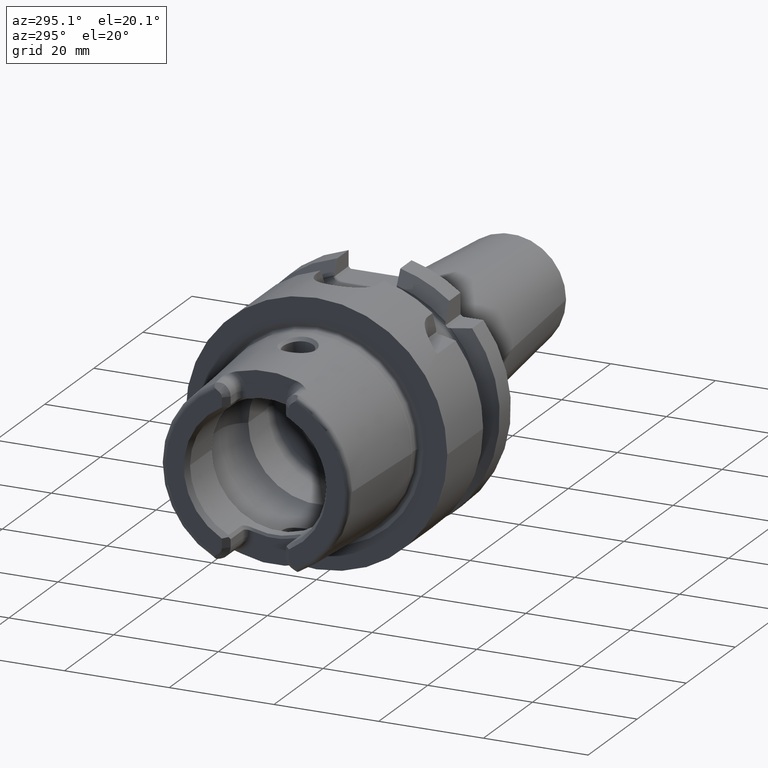
[diagram: clean part render]
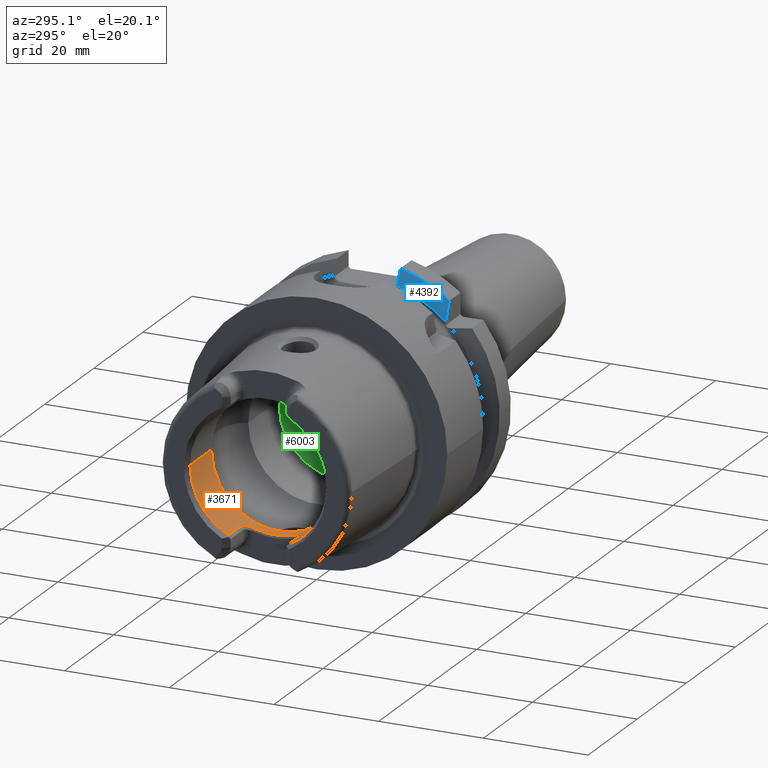
[diagram: same view with three faces highlighted in distinct colors, each labeled with its STEP entity id]
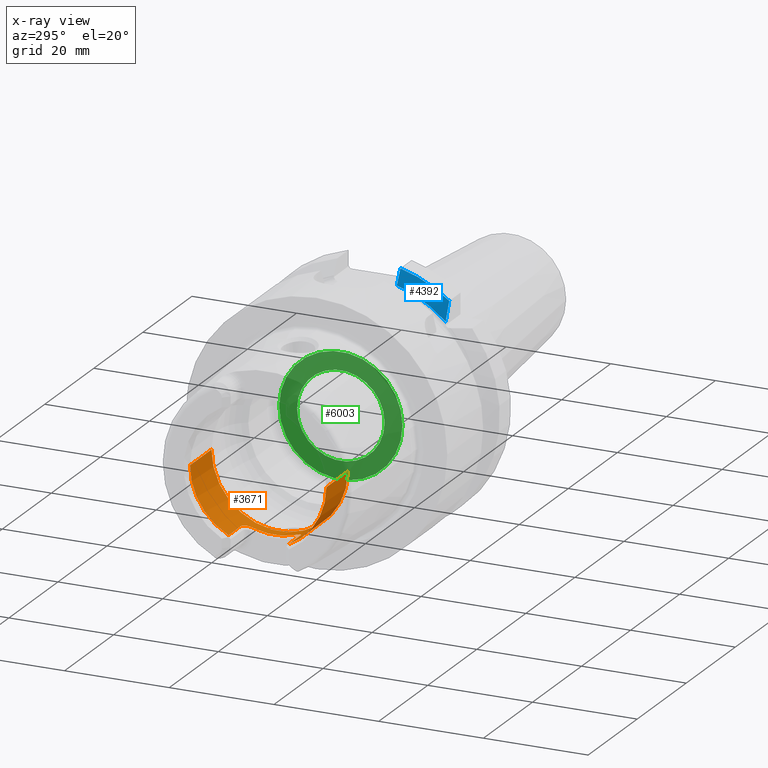
[diagram: x-ray of the same camera — body ghosted, the three highlighted faces saturated]
A machine part, auxiliary view with three faces highlighted in distinct colors.
The next image is the same camera in x-ray (body ghosted, the three faces saturated) — at least one of them is partly hidden behind the body in this view.
Their STEP definitions:

[orange] entity #3671 — the highlighted cylindrical surface (partial cylindrical patch) has radius 13.021 mm, axis along (1, 0, 0).
#164=CARTESIAN_POINT('',(-2.375E1,0.E0,0.E0));
#165=DIRECTION('',(-1.E0,0.E0,0.E0));
#166=DIRECTION('',(0.E0,1.E0,0.E0));
#167=AXIS2_PLACEMENT_3D('',#164,#165,#166);
#186=CARTESIAN_POINT('',(-2.375E1,0.E0,0.E0));
#187=DIRECTION('',(-1.E0,0.E0,0.E0));
#188=DIRECTION('',(0.E0,-4.349817201113E-1,-9.004392834439E-1));
#189=AXIS2_PLACEMENT_3D('',#186,#187,#188);
#456=DIRECTION('',(1.E0,0.E0,0.E0));
#457=VECTOR('',#456,5.E0);
#458=CARTESIAN_POINT('',(-2.375E1,-5.663896977569E0,-1.172461990972E1));
#459=LINE('',#458,#457);
#460=CARTESIAN_POINT('',(-1.706132486541E1,-3.87E0,-1.243259992922E1));
#461=CARTESIAN_POINT('',(-1.705894931913E1,-3.948091654476E0,
-1.240829168279E1));
#462=CARTESIAN_POINT('',(-1.706441309206E1,-4.102870364684E0,
-1.235850704973E1));
#463=CARTESIAN_POINT('',(-1.710340937126E1,-4.332575060023E0,
-1.227984117765E1));
#464=CARTESIAN_POINT('',(-1.717180096637E1,-4.554379111812E0,
-1.219925586913E1));
#465=CARTESIAN_POINT('',(-1.726759596237E1,-4.764243794044E0,
-1.211875654714E1));
#466=CARTESIAN_POINT('',(-1.738971110869E1,-4.958984425980E0,
-1.204028059499E1));
#467=CARTESIAN_POINT('',(-1.753429552224E1,-5.134450973302E0,
-1.196639092679E1));
#468=CARTESIAN_POINT('',(-1.769814688581E1,-5.287549372908E0,
-1.189942311510E1));
#469=CARTESIAN_POINT('',(-1.787965354263E1,-5.418141852278E0,
-1.184043301133E1));
#470=CARTESIAN_POINT('',(-1.807911024602E1,-5.524630321581E0,
-1.179103046127E1));
#471=CARTESIAN_POINT('',(-1.829372880595E1,-5.603842524286E0,
-1.175351168471E1));
#472=CARTESIAN_POINT('',(-1.851977527645E1,-5.652930353736E0,
-1.172992742962E1));
#473=CARTESIAN_POINT('',(-1.867259884466E1,-5.663896977569E0,
-1.172461990972E1));
#474=CARTESIAN_POINT('',(-1.875E1,-5.663896977569E0,-1.172461990972E1));
#476=CARTESIAN_POINT('',(-1.706132486541E1,3.87E0,-1.243259992922E1));
#477=CARTESIAN_POINT('',(-1.706132486541E1,3.369759291873E0,-1.258831406395E1));
#478=CARTESIAN_POINT('',(-1.706132486543E1,2.350461057243E0,-1.283928497214E1));
#479=CARTESIAN_POINT('',(-1.706132486542E1,7.873060254891E-1,
-1.302889312722E1));
#480=CARTESIAN_POINT('',(-1.706132486542E1,-7.873060254894E-1,
-1.302889312722E1));
#481=CARTESIAN_POINT('',(-1.706132486543E1,-2.350461057241E0,
-1.283928497214E1));
#482=CARTESIAN_POINT('',(-1.706132486541E1,-3.369759291876E0,
-1.258831406395E1));
#483=CARTESIAN_POINT('',(-1.706132486541E1,-3.87E0,-1.243259992922E1));
#485=CARTESIAN_POINT('',(-1.875E1,5.663896977569E0,-1.172461990972E1));
#486=CARTESIAN_POINT('',(-1.867253385205E1,5.663896977569E0,-1.172461990972E1));
#487=CARTESIAN_POINT('',(-1.851960965794E1,5.652887713534E0,-1.172994778184E1));
#488=CARTESIAN_POINT('',(-1.829404762981E1,5.603940373139E0,-1.175346518954E1));
#489=CARTESIAN_POINT('',(-1.807890617342E1,5.524545608259E0,-1.179107033680E1));
#490=CARTESIAN_POINT('',(-1.788013782468E1,5.418376947730E0,-1.184032277023E1));
#491=CARTESIAN_POINT('',(-1.769964741780E1,5.288706180038E0,-1.189890407446E1));
#492=CARTESIAN_POINT('',(-1.753651365017E1,5.136729908552E0,-1.196540626531E1));
#493=CARTESIAN_POINT('',(-1.739224734480E1,4.962438291892E0,-1.203885194320E1));
#494=CARTESIAN_POINT('',(-1.726976173003E1,4.768262064128E0,-1.211717470493E1));
#495=CARTESIAN_POINT('',(-1.717314189077E1,4.558070073865E0,-1.219788504272E1));
#496=CARTESIAN_POINT('',(-1.710382652775E1,4.334631930509E0,-1.227912648142E1));
#497=CARTESIAN_POINT('',(-1.706445401734E1,4.103717960171E0,-1.235823255338E1));
#498=CARTESIAN_POINT('',(-1.705894190168E1,3.948335489392E0,-1.240821578224E1));
#499=CARTESIAN_POINT('',(-1.706132486541E1,3.87E0,-1.243259992922E1));
#501=DIRECTION('',(1.E0,0.E0,0.E0));
#502=VECTOR('',#501,5.E0);
#503=CARTESIAN_POINT('',(-2.375E1,5.663896977569E0,-1.172461990972E1));
#504=LINE('',#503,#502);
#505=DIRECTION('',(-1.E0,0.E0,0.E0));
#506=VECTOR('',#505,8.766098951869E0);
#507=CARTESIAN_POINT('',(-1.498390104813E1,1.3021E1,0.E0));
#508=LINE('',#507,#506);
#509=CARTESIAN_POINT('',(-1.498390104813E1,0.E0,0.E0));
#510=DIRECTION('',(-1.E0,0.E0,0.E0));
#511=DIRECTION('',(0.E0,1.E0,0.E0));
#512=AXIS2_PLACEMENT_3D('',#509,#510,#511);
#514=DIRECTION('',(-1.E0,0.E0,0.E0));
#515=VECTOR('',#514,8.766098951869E0);
#516=CARTESIAN_POINT('',(-1.498390104813E1,-1.3021E1,0.E0));
#517=LINE('',#516,#515);
#2849=CARTESIAN_POINT('',(-1.875E1,-5.663896977569E0,-1.172461990972E1));
#2850=VERTEX_POINT('',#2849);
#2851=CARTESIAN_POINT('',(-1.706132486541E1,-3.87E0,-1.243259992922E1));
#2852=VERTEX_POINT('',#2851);
#2853=CARTESIAN_POINT('',(-1.875E1,5.663896977569E0,-1.172461990972E1));
#2854=VERTEX_POINT('',#2853);
#2855=CARTESIAN_POINT('',(-1.706132486541E1,3.87E0,-1.243259992922E1));
#2856=VERTEX_POINT('',#2855);
#3124=CARTESIAN_POINT('',(-1.498390104813E1,1.3021E1,0.E0));
#3125=VERTEX_POINT('',#3124);
#3126=CARTESIAN_POINT('',(-2.375E1,1.3021E1,0.E0));
#3127=VERTEX_POINT('',#3126);
#3136=CARTESIAN_POINT('',(-1.498390104813E1,-1.3021E1,0.E0));
#3137=VERTEX_POINT('',#3136);
#3138=CARTESIAN_POINT('',(-2.375E1,-1.3021E1,0.E0));
#3139=VERTEX_POINT('',#3138);
#3144=CARTESIAN_POINT('',(-2.375E1,-5.663896977569E0,-1.172461990972E1));
#3145=VERTEX_POINT('',#3144);
#3146=CARTESIAN_POINT('',(-2.375E1,5.663896977569E0,-1.172461990972E1));
#3147=VERTEX_POINT('',#3146);
#3647=CARTESIAN_POINT('',(-2.66425E1,0.E0,0.E0));
#3648=DIRECTION('',(1.E0,0.E0,0.E0));
#3649=DIRECTION('',(0.E0,-1.E0,0.E0));
#3650=AXIS2_PLACEMENT_3D('',#3647,#3648,#3649);
#3651=CYLINDRICAL_SURFACE('',#3650,1.3021E1);
#3653=ORIENTED_EDGE('',*,*,#3652,.T.);
#3655=ORIENTED_EDGE('',*,*,#3654,.F.);
#3657=ORIENTED_EDGE('',*,*,#3656,.F.);
#3659=ORIENTED_EDGE('',*,*,#3658,.F.);
#3660=ORIENTED_EDGE('',*,*,#3639,.F.);
#3661=ORIENTED_EDGE('',*,*,#3387,.F.);
#3663=ORIENTED_EDGE('',*,*,#3662,.F.);
#3665=ORIENTED_EDGE('',*,*,#3664,.T.);
#3667=ORIENTED_EDGE('',*,*,#3666,.T.);
#3668=ORIENTED_EDGE('',*,*,#3403,.F.);
#3669=EDGE_LOOP('',(#3653,#3655,#3657,#3659,#3660,#3661,#3663,#3665,#3667,
#3668));
#3670=FACE_OUTER_BOUND('',#3669,.F.);
#3671=ADVANCED_FACE('',(#3670),#3651,.F.);
#168=CIRCLE('',#167,1.3021E1);
#190=CIRCLE('',#189,1.3021E1);
#475=B_SPLINE_CURVE_WITH_KNOTS('',3,(#460,#461,#462,#463,#464,#465,#466,#467,
#468,#469,#470,#471,#472,#473,#474),.UNSPECIFIED.,.F.,.F.,(4,1,1,1,1,1,1,1,1,1,
1,1,4),(0.E0,8.333333333333E-2,1.666666666667E-1,2.5E-1,3.333333333333E-1,
4.166666666667E-1,5.E-1,5.833333333333E-1,6.666666666667E-1,7.5E-1,
8.333333333333E-1,9.166666666667E-1,1.E0),.UNSPECIFIED.);
#484=B_SPLINE_CURVE_WITH_KNOTS('',3,(#476,#477,#478,#479,#480,#481,#482,#483),
.UNSPECIFIED.,.F.,.F.,(4,1,1,1,1,4),(0.E0,2.E-1,4.E-1,6.E-1,8.E-1,1.E0),
.UNSPECIFIED.);
#500=B_SPLINE_CURVE_WITH_KNOTS('',3,(#485,#486,#487,#488,#489,#490,#491,#492,
#493,#494,#495,#496,#497,#498,#499),.UNSPECIFIED.,.F.,.F.,(4,1,1,1,1,1,1,1,1,1,
1,1,4),(0.E0,8.333333333333E-2,1.666666666667E-1,2.5E-1,3.333333333333E-1,
4.166666666667E-1,5.E-1,5.833333333333E-1,6.666666666667E-1,7.5E-1,
8.333333333333E-1,9.166666666667E-1,1.E0),.UNSPECIFIED.);
#513=CIRCLE('',#512,1.3021E1);
#3387=EDGE_CURVE('',#3127,#3147,#168,.T.);
#3403=EDGE_CURVE('',#3145,#3139,#190,.T.);
#3639=EDGE_CURVE('',#3147,#2854,#504,.T.);
#3652=EDGE_CURVE('',#3145,#2850,#459,.T.);
#3654=EDGE_CURVE('',#2852,#2850,#475,.T.);
#3656=EDGE_CURVE('',#2856,#2852,#484,.T.);
#3658=EDGE_CURVE('',#2854,#2856,#500,.T.);
#3662=EDGE_CURVE('',#3125,#3127,#508,.T.);
#3664=EDGE_CURVE('',#3125,#3137,#513,.T.);
#3666=EDGE_CURVE('',#3137,#3139,#517,.T.);

[blue] entity #4392 — the highlighted conical surface has half-angle 60 deg.
#1001=CARTESIAN_POINT('',(2.139193283149E1,0.E0,0.E0));
#1002=DIRECTION('',(1.E0,0.E0,0.E0));
#1003=DIRECTION('',(0.E0,-2.407E-1,9.705995621264E-1));
#1004=AXIS2_PLACEMENT_3D('',#1001,#1002,#1003);
#1158=CARTESIAN_POINT('',(1.99125E1,0.E0,0.E0));
#1159=DIRECTION('',(1.E0,0.E0,0.E0));
#1160=DIRECTION('',(0.E0,-2.681888512389E-1,9.633663581790E-1));
#1161=AXIS2_PLACEMENT_3D('',#1158,#1159,#1160);
#1203=CARTESIAN_POINT('',(2.139193283149E1,-6.0175E0,2.426498905316E1));
#1204=CARTESIAN_POINT('',(2.121966312803E1,-6.0175E0,2.395757094724E1));
#1205=CARTESIAN_POINT('',(2.088037846740E1,-6.0175E0,2.335143473849E1));
#1206=CARTESIAN_POINT('',(2.038740528952E1,-6.0175E0,2.246862618316E1));
#1207=CARTESIAN_POINT('',(2.006906294293E1,-6.0175E0,2.189706496369E1));
#1208=CARTESIAN_POINT('',(1.99125E1,-6.0175E0,2.161557810313E1));
#1825=CARTESIAN_POINT('',(2.139193283149E1,-1.535E1,1.973265060756E1));
#1826=CARTESIAN_POINT('',(2.120662292319E1,-1.535E1,1.932600709233E1));
#1827=CARTESIAN_POINT('',(2.085019843940E1,-1.535E1,1.853434646059E1));
#1828=CARTESIAN_POINT('',(2.035984713333E1,-1.535E1,1.741736156854E1));
#1829=CARTESIAN_POINT('',(2.005735775581E1,-1.535E1,1.670923586124E1));
#1830=CARTESIAN_POINT('',(1.99125E1,-1.535E1,1.636523825010E1));
#2932=CARTESIAN_POINT('',(1.99125E1,-6.0175E0,2.161557810313E1));
#2933=VERTEX_POINT('',#2932);
#2934=VERTEX_POINT('',#1203);
#2973=CARTESIAN_POINT('',(1.99125E1,-1.535E1,1.636523825010E1));
#2974=VERTEX_POINT('',#2973);
#3016=VERTEX_POINT('',#1825);
#4378=CARTESIAN_POINT('',(2.065221641574E1,0.E0,0.E0));
#4379=DIRECTION('',(1.E0,0.E0,0.E0));
#4380=DIRECTION('',(0.E0,-1.E0,0.E0));
#4381=AXIS2_PLACEMENT_3D('',#4378,#4379,#4380);
#4382=CONICAL_SURFACE('',#4381,2.371877358474E1,6.E1);
#4384=ORIENTED_EDGE('',*,*,#4383,.F.);
#4385=ORIENTED_EDGE('',*,*,#4277,.T.);
#4387=ORIENTED_EDGE('',*,*,#4386,.T.);
#4389=ORIENTED_EDGE('',*,*,#4388,.F.);
#4390=EDGE_LOOP('',(#4384,#4385,#4387,#4389));
#4391=FACE_OUTER_BOUND('',#4390,.F.);
#4392=ADVANCED_FACE('',(#4391),#4382,.T.);
#1005=CIRCLE('',#1004,2.5E1);
#1162=CIRCLE('',#1161,2.243754716948E1);
#1209=B_SPLINE_CURVE_WITH_KNOTS('',3,(#1203,#1204,#1205,#1206,#1207,#1208),
.UNSPECIFIED.,.F.,.F.,(4,1,1,4),(0.E0,3.333333333333E-1,6.666666666667E-1,1.E0),
.UNSPECIFIED.);
#1831=B_SPLINE_CURVE_WITH_KNOTS('',3,(#1825,#1826,#1827,#1828,#1829,#1830),
.UNSPECIFIED.,.F.,.F.,(4,1,1,4),(0.E0,3.333333333333E-1,6.666666666667E-1,1.E0),
.UNSPECIFIED.);
#4277=EDGE_CURVE('',#2934,#3016,#1005,.T.);
#4383=EDGE_CURVE('',#2934,#2933,#1209,.T.);
#4386=EDGE_CURVE('',#3016,#2974,#1831,.T.);
#4388=EDGE_CURVE('',#2933,#2974,#1162,.T.);

[green] entity #6003 — the highlighted planar face has unit normal (1, 0, 0).
#2328=CARTESIAN_POINT('',(9.95E0,0.E0,0.E0));
#2329=DIRECTION('',(1.E0,0.E0,0.E0));
#2330=DIRECTION('',(0.E0,1.E0,0.E0));
#2331=AXIS2_PLACEMENT_3D('',#2328,#2329,#2330);
#2338=CARTESIAN_POINT('',(9.95E0,0.E0,0.E0));
#2339=DIRECTION('',(-1.E0,0.E0,0.E0));
#2340=DIRECTION('',(0.E0,1.E0,0.E0));
#2341=AXIS2_PLACEMENT_3D('',#2338,#2339,#2340);
#2348=CARTESIAN_POINT('',(9.95E0,0.E0,0.E0));
#2349=DIRECTION('',(1.E0,0.E0,0.E0));
#2350=DIRECTION('',(0.E0,1.E0,0.E0));
#2351=AXIS2_PLACEMENT_3D('',#2348,#2349,#2350);
#2353=CARTESIAN_POINT('',(9.95E0,0.E0,3.398608382830E-14));
#2354=DIRECTION('',(1.E0,0.E0,0.E0));
#2355=DIRECTION('',(0.E0,-1.E0,0.E0));
#2356=AXIS2_PLACEMENT_3D('',#2353,#2354,#2355);
#2766=CARTESIAN_POINT('',(9.95E0,1.1775E1,0.E0));
#2768=VERTEX_POINT('',#2766);
#2770=CARTESIAN_POINT('',(9.95E0,-1.1775E1,0.E0));
#2772=VERTEX_POINT('',#2770);
#3184=CARTESIAN_POINT('',(9.95E0,8.3625E0,0.E0));
#3185=CARTESIAN_POINT('',(9.95E0,-8.3625E0,0.E0));
#3186=VERTEX_POINT('',#3184);
#3187=VERTEX_POINT('',#3185);
#5988=CARTESIAN_POINT('',(9.95E0,0.E0,0.E0));
#5989=DIRECTION('',(1.E0,0.E0,0.E0));
#5990=DIRECTION('',(0.E0,-1.E0,0.E0));
#5991=AXIS2_PLACEMENT_3D('',#5988,#5989,#5990);
#5992=PLANE('',#5991);
#5993=ORIENTED_EDGE('',*,*,#5970,.T.);
#5994=ORIENTED_EDGE('',*,*,#5981,.F.);
#5995=EDGE_LOOP('',(#5993,#5994));
#5996=FACE_OUTER_BOUND('',#5995,.F.);
#5998=ORIENTED_EDGE('',*,*,#5997,.F.);
#6000=ORIENTED_EDGE('',*,*,#5999,.F.);
#6001=EDGE_LOOP('',(#5998,#6000));
#6002=FACE_BOUND('',#6001,.F.);
#6003=ADVANCED_FACE('',(#5996,#6002),#5992,.F.);
#2332=CIRCLE('',#2331,1.1775E1);
#2342=CIRCLE('',#2341,1.1775E1);
#2352=CIRCLE('',#2351,8.3625E0);
#2357=CIRCLE('',#2356,8.3625E0);
#5970=EDGE_CURVE('',#2768,#2772,#2332,.T.);
#5981=EDGE_CURVE('',#2768,#2772,#2342,.T.);
#5997=EDGE_CURVE('',#3186,#3187,#2352,.T.);
#5999=EDGE_CURVE('',#3187,#3186,#2357,.T.);